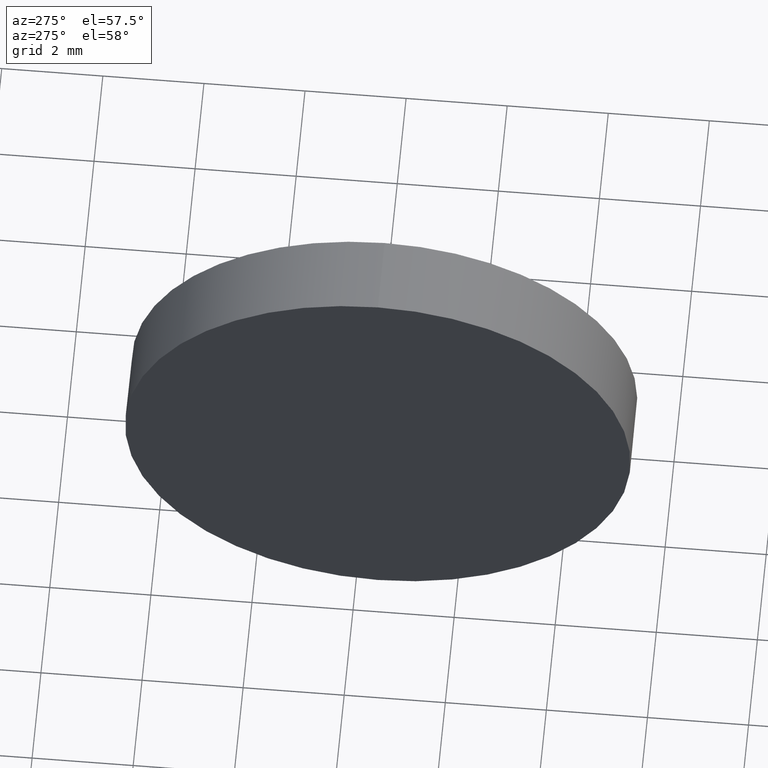
[diagram: clean part render]
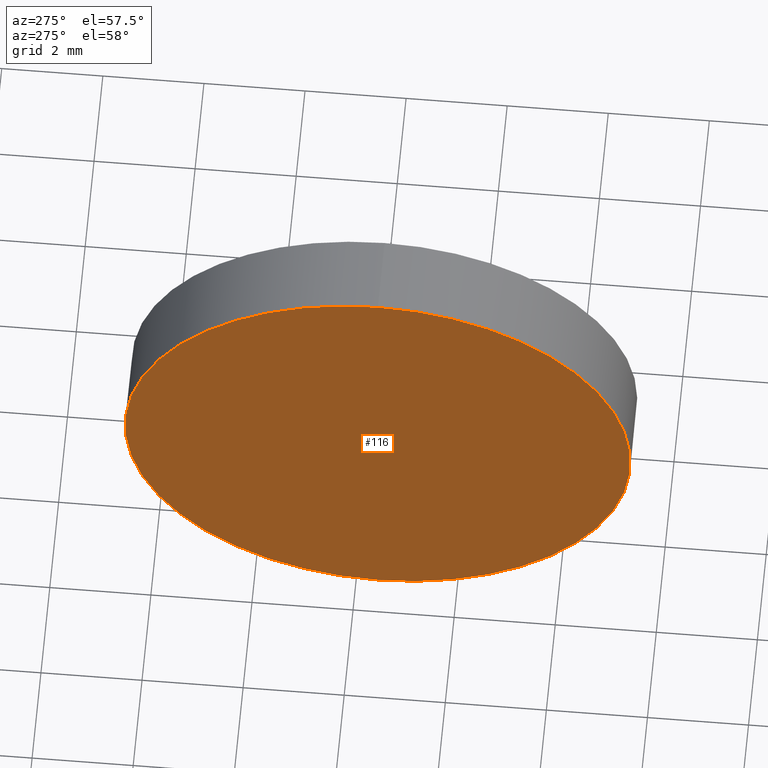
[diagram: same view with one face highlighted and labeled with its STEP entity id]
A machine part, auxiliary view. The second image highlights one B-rep face of the part: STEP entity #116.
In plain terms, the highlighted planar face has unit normal (1, 0, 0).
Its self-contained STEP definition (entity closure, byte-faithful):
#19 = DIRECTION ( 'NONE',  ( -1.000000000000000000, -0.0000000000000000000, -0.0000000000000000000 ) ) ;
#23 = PLANE ( 'NONE',  #71 ) ;
#33 = ORIENTED_EDGE ( 'NONE', *, *, #35, .T. ) ;
#35 = EDGE_CURVE ( 'NONE', #107, #75, #37, .T. ) ;
#37 = CIRCLE ( 'NONE', #173, 5.000000000000004400 ) ;
#40 = FACE_OUTER_BOUND ( 'NONE', #93, .T. ) ;
#50 = CARTESIAN_POINT ( 'NONE',  ( 650.6020024651052200, 189.5627684869003800, 0.0000000000000000000 ) ) ;
#52 = DIRECTION ( 'NONE',  ( 0.0000000000000000000, 0.0000000000000000000, 1.000000000000000000 ) ) ;
#59 = EDGE_CURVE ( 'NONE', #75, #107, #131, .T. ) ;
#62 = CARTESIAN_POINT ( 'NONE',  ( 650.6020024651052200, 189.5627684869003800, -5.000000000000004400 ) ) ;
#71 = AXIS2_PLACEMENT_3D ( 'NONE', #50, #167, #95 ) ;
#75 = VERTEX_POINT ( 'NONE', #62 ) ;
#79 = DIRECTION ( 'NONE',  ( -1.000000000000000000, -0.0000000000000000000, -0.0000000000000000000 ) ) ;
#80 = CARTESIAN_POINT ( 'NONE',  ( 650.6020024651052200, 189.5627684869003800, 0.0000000000000000000 ) ) ;
#93 = EDGE_LOOP ( 'NONE', ( #33, #178 ) ) ;
#95 = DIRECTION ( 'NONE',  ( 0.0000000000000000000, 0.0000000000000000000, -1.000000000000000000 ) ) ;
#107 = VERTEX_POINT ( 'NONE', #179 ) ;
#111 = CARTESIAN_POINT ( 'NONE',  ( 650.6020024651052200, 189.5627684869003800, 0.0000000000000000000 ) ) ;
#116 = ADVANCED_FACE ( 'NONE', ( #40 ), #23, .F. ) ;
#127 = DIRECTION ( 'NONE',  ( 0.0000000000000000000, 0.0000000000000000000, 1.000000000000000000 ) ) ;
#131 = CIRCLE ( 'NONE', #134, 5.000000000000004400 ) ;
#134 = AXIS2_PLACEMENT_3D ( 'NONE', #80, #19, #127 ) ;
#167 = DIRECTION ( 'NONE',  ( 1.000000000000000000, 0.0000000000000000000, 0.0000000000000000000 ) ) ;
#173 = AXIS2_PLACEMENT_3D ( 'NONE', #111, #79, #52 ) ;
#178 = ORIENTED_EDGE ( 'NONE', *, *, #59, .T. ) ;
#179 = CARTESIAN_POINT ( 'NONE',  ( 650.6020024651052200, 189.5627684869003800, 5.000000000000004400 ) ) ;